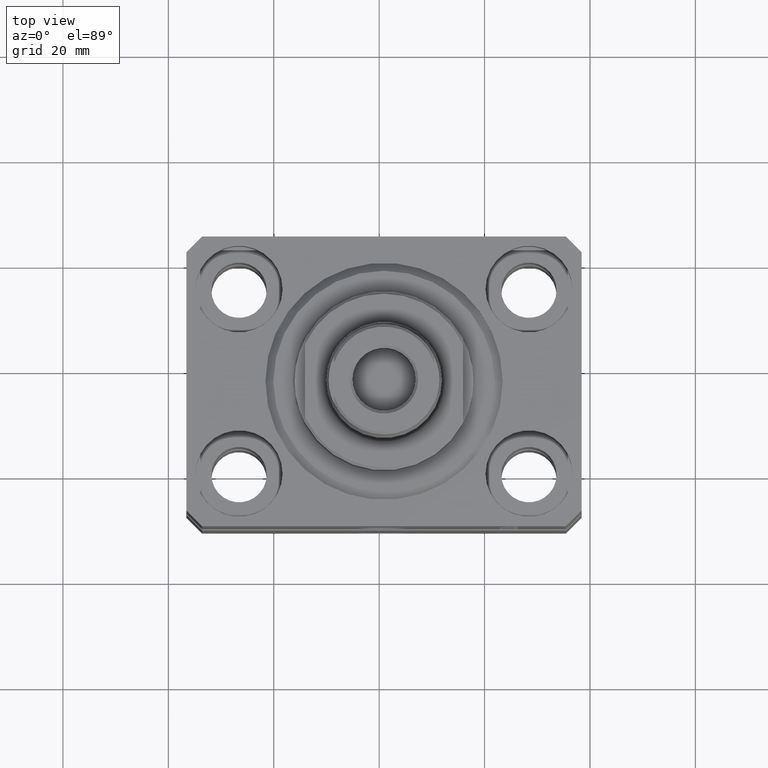
[diagram: clean part render]
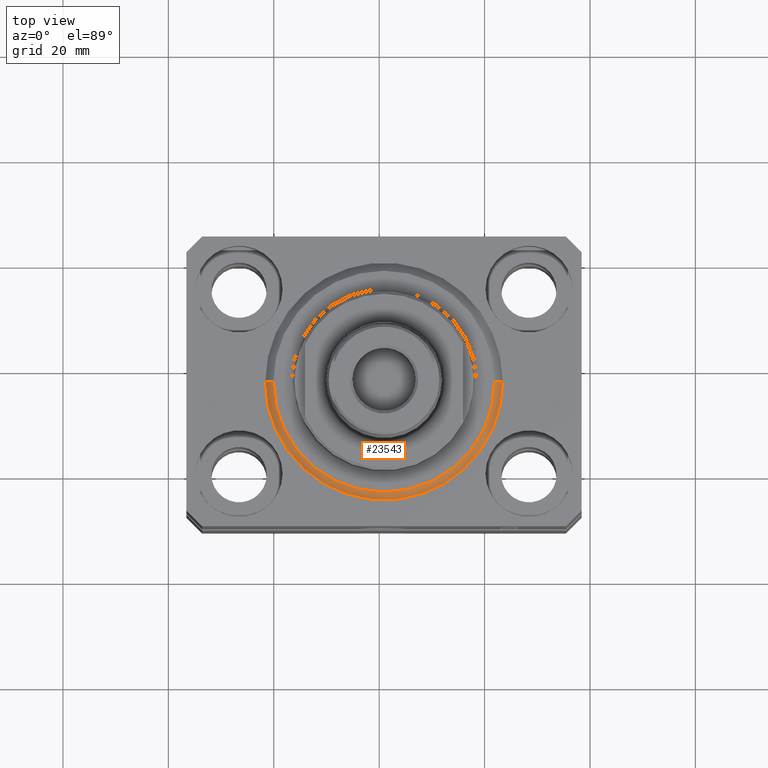
[diagram: same view with one face highlighted and labeled with its STEP entity id]
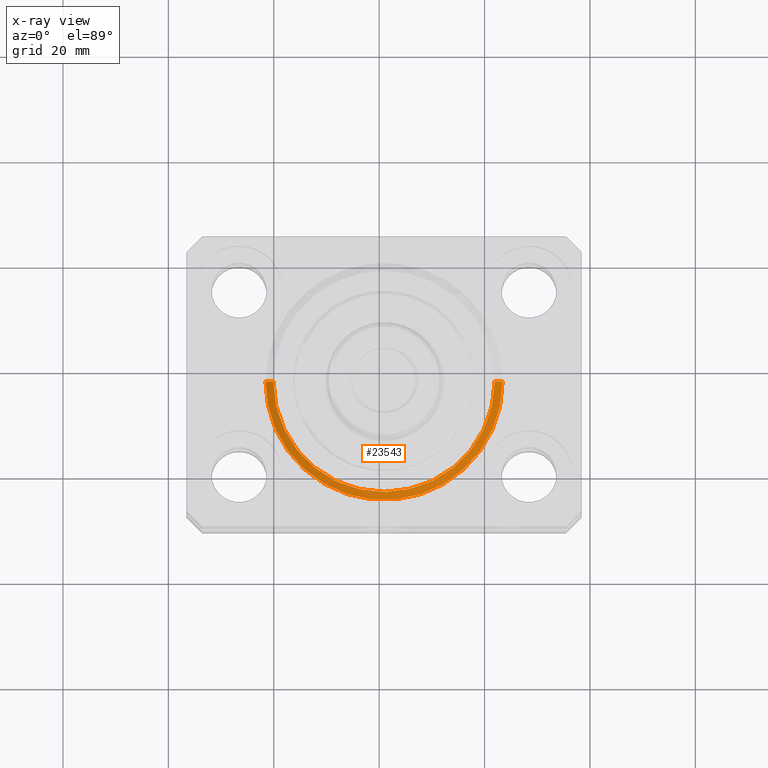
[diagram: x-ray of the same camera — body ghosted, the highlighted face saturated]
A machine part, top view. The second image highlights one B-rep face of the part: STEP entity #23543.
The next image is the same camera in x-ray: the body ghosted, the highlighted face saturated — about 0% of this face is hidden behind the body in this view.
In plain terms, the highlighted conical surface has half-angle 45 deg.
Its self-contained STEP definition (entity closure, byte-faithful):
#2910 = DIRECTION ( 'NONE',  ( -0.000000000000000000, -0.000000000000000000, 1.000000000000000000 ) ) ;
#3101 = VERTEX_POINT ( 'NONE', #24913 ) ;
#4192 = DIRECTION ( 'NONE',  ( 0.7071067811865491270, 0.000000000000000000, 0.7071067811865459074 ) ) ;
#5287 = CARTESIAN_POINT ( 'NONE',  ( 0.000000000000000000, 0.000000000000000000, 0.000000000000000000 ) ) ;
#6698 = CARTESIAN_POINT ( 'NONE',  ( 0.000000000000000000, 0.000000000000000000, 1.500000000000004885 ) ) ;
#7384 = CARTESIAN_POINT ( 'NONE',  ( 22.50000000000000355, 2.755455298081545172E-15, 1.500000000000004885 ) ) ;
#8390 = DIRECTION ( 'NONE',  ( 1.000000000000000000, 0.000000000000000000, 0.000000000000000000 ) ) ;
#8874 = AXIS2_PLACEMENT_3D ( 'NONE', #6698, #2910, #39675 ) ;
#10511 = DIRECTION ( 'NONE',  ( 1.000000000000000000, 0.000000000000000000, 0.000000000000000000 ) ) ;
#10750 = EDGE_LOOP ( 'NONE', ( #14486, #39419, #38784, #41904 ) ) ;
#11879 = EDGE_CURVE ( 'NONE', #23872, #32207, #40959, .T. ) ;
#14486 = ORIENTED_EDGE ( 'NONE', *, *, #40560, .F. ) ;
#17068 = CARTESIAN_POINT ( 'NONE',  ( 22.50000000000000355, 0.000000000000000000, 1.500000000000004885 ) ) ;
#17428 = DIRECTION ( 'NONE',  ( -0.7071067811865491270, 8.659560562354953812E-17, 0.7071067811865459074 ) ) ;
#17971 = VECTOR ( 'NONE', #4192, 1000.000000000000000 ) ;
#19372 = DIRECTION ( 'NONE',  ( -0.000000000000000000, -0.000000000000000000, 1.000000000000000000 ) ) ;
#19743 = FACE_OUTER_BOUND ( 'NONE', #10750, .T. ) ;
#23543 = ADVANCED_FACE ( 'NONE', ( #19743 ), #39964, .T. ) ;
#23872 = VERTEX_POINT ( 'NONE', #33181 ) ;
#24913 = CARTESIAN_POINT ( 'NONE',  ( -20.99999999999998934, 2.663606788145492628E-15, 0.000000000000000000 ) ) ;
#25173 = EDGE_CURVE ( 'NONE', #28279, #32207, #38817, .T. ) ;
#25203 = DIRECTION ( 'NONE',  ( -0.000000000000000000, -0.000000000000000000, -1.000000000000000000 ) ) ;
#25264 = CARTESIAN_POINT ( 'NONE',  ( -22.50000000000000355, 0.000000000000000000, 1.500000000000004885 ) ) ;
#26003 = CARTESIAN_POINT ( 'NONE',  ( 0.000000000000000000, 0.000000000000000000, 1.500000000000004885 ) ) ;
#26665 = VECTOR ( 'NONE', #17428, 1000.000000000000000 ) ;
#28279 = VERTEX_POINT ( 'NONE', #25264 ) ;
#29054 = CIRCLE ( 'NONE', #37519, 20.99999999999998934 ) ;
#30474 = EDGE_CURVE ( 'NONE', #23872, #3101, #29054, .T. ) ;
#31019 = AXIS2_PLACEMENT_3D ( 'NONE', #26003, #19372, #10511 ) ;
#32207 = VERTEX_POINT ( 'NONE', #7384 ) ;
#33181 = CARTESIAN_POINT ( 'NONE',  ( 20.99999999999998934, 0.000000000000000000, 0.000000000000000000 ) ) ;
#34875 = CARTESIAN_POINT ( 'NONE',  ( -22.50000000000000355, 2.755455298081545172E-15, 1.500000000000004885 ) ) ;
#37519 = AXIS2_PLACEMENT_3D ( 'NONE', #5287, #25203, #8390 ) ;
#38784 = ORIENTED_EDGE ( 'NONE', *, *, #11879, .T. ) ;
#38817 = CIRCLE ( 'NONE', #31019, 22.50000000000000355 ) ;
#39419 = ORIENTED_EDGE ( 'NONE', *, *, #30474, .F. ) ;
#39675 = DIRECTION ( 'NONE',  ( 1.000000000000000000, 0.000000000000000000, 0.000000000000000000 ) ) ;
#39964 = CONICAL_SURFACE ( 'NONE', #8874, 22.50000000000000355, 0.7853981633974506105 ) ;
#40560 = EDGE_CURVE ( 'NONE', #3101, #28279, #41749, .T. ) ;
#40959 = LINE ( 'NONE', #17068, #17971 ) ;
#41749 = LINE ( 'NONE', #34875, #26665 ) ;
#41904 = ORIENTED_EDGE ( 'NONE', *, *, #25173, .F. ) ;